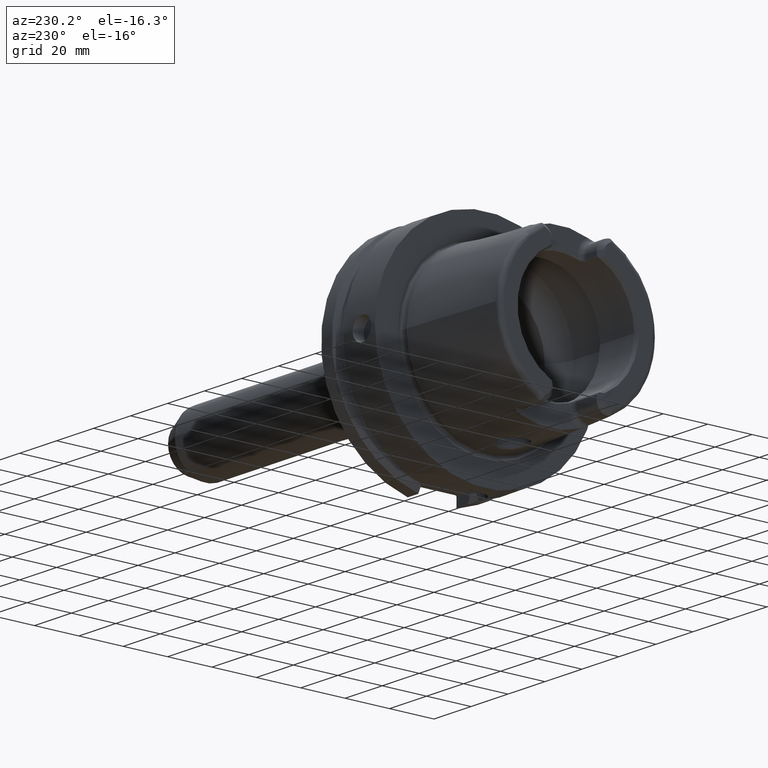
[diagram: clean part render]
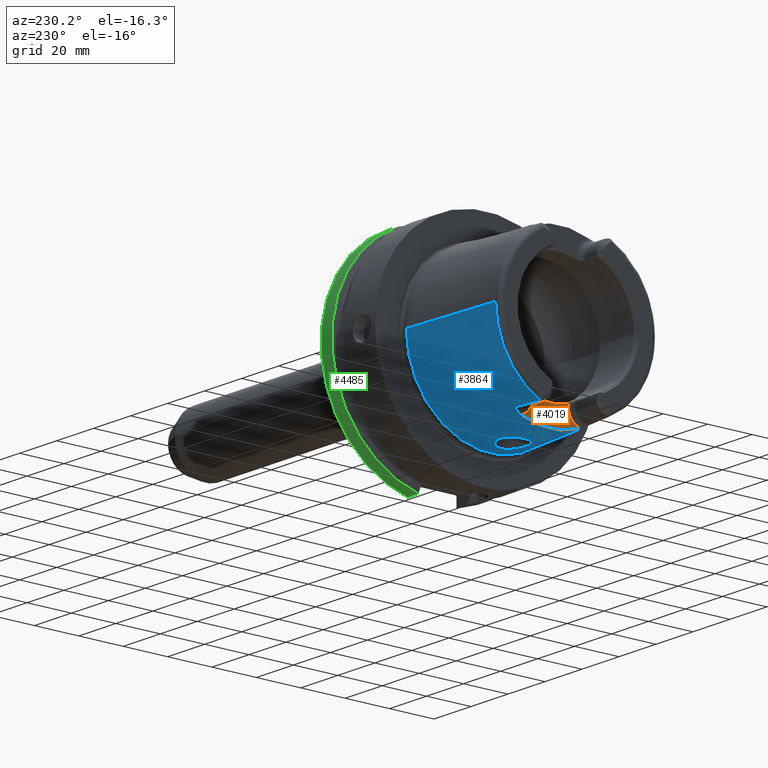
[diagram: same view with three faces highlighted in distinct colors, each labeled with its STEP entity id]
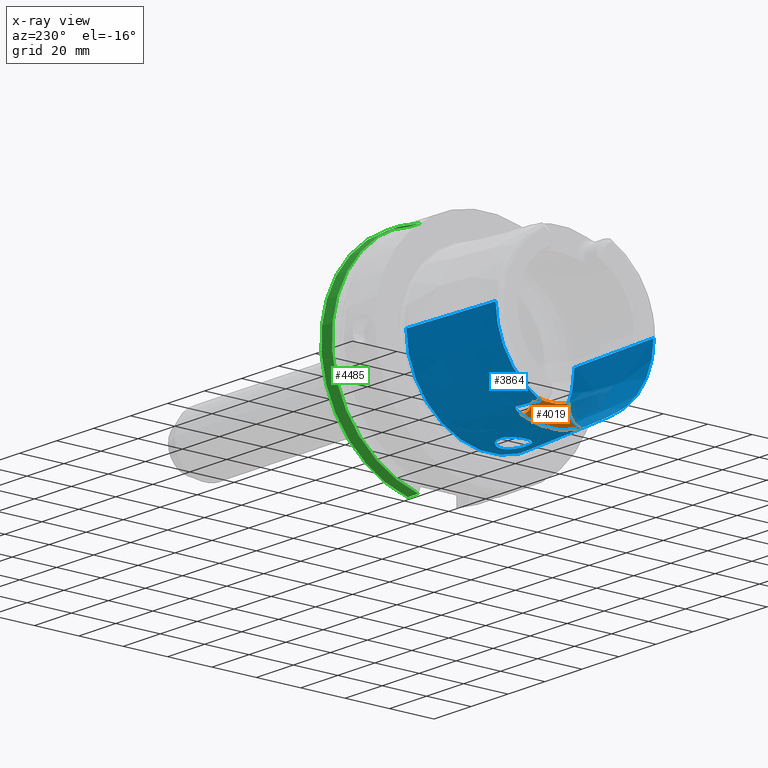
[diagram: x-ray of the same camera — body ghosted, the three highlighted faces saturated]
A machine part, auxiliary view with three faces highlighted in distinct colors.
The next image is the same camera in x-ray (body ghosted, the three faces saturated) — at least one of them is partly hidden behind the body in this view.
Their STEP definitions:

[orange] entity #4019 — the highlighted planar face has unit normal (-1, 0, 0).
#549=CARTESIAN_POINT('',(-3.5E1,0.E0,0.E0));
#550=DIRECTION('',(1.E0,0.E0,0.E0));
#551=DIRECTION('',(0.E0,-3.659355944317E-1,-9.306401779033E-1));
#552=AXIS2_PLACEMENT_3D('',#549,#550,#551);
#659=CARTESIAN_POINT('',(-3.5E1,1.326662904053E1,-3.373942900971E1));
#700=CARTESIAN_POINT('',(-3.5E1,-8.009999999994E0,-2.576044140549E1));
#701=CARTESIAN_POINT('',(-3.5E1,-7.269616392494E0,-2.599521452766E1));
#702=CARTESIAN_POINT('',(-3.5E1,-5.774680607735E0,-2.639793295020E1));
#703=CARTESIAN_POINT('',(-3.5E1,-3.481759859027E0,-2.680464578135E1));
#704=CARTESIAN_POINT('',(-3.5E1,-1.163574268408E0,-2.700848033442E1));
#705=CARTESIAN_POINT('',(-3.5E1,1.163574229636E0,-2.700848033529E1));
#706=CARTESIAN_POINT('',(-3.5E1,3.481759771636E0,-2.680464579107E1));
#707=CARTESIAN_POINT('',(-3.5E1,5.774680487919E0,-2.639793297771E1));
#708=CARTESIAN_POINT('',(-3.5E1,7.269616343063E0,-2.599521454333E1));
#709=CARTESIAN_POINT('',(-3.5E1,8.009999999993E0,-2.576044140549E1));
#711=DIRECTION('',(0.E0,-5.262912738182E-12,-1.E0));
#712=VECTOR('',#711,1.199558594507E0);
#713=CARTESIAN_POINT('',(-3.5E1,-8.009999999994E0,-2.576044140549E1));
#714=LINE('',#713,#712);
#715=CARTESIAN_POINT('',(-3.5E1,-1.501E1,-2.696E1));
#716=DIRECTION('',(-1.E0,0.E0,0.E0));
#717=DIRECTION('',(0.E0,1.E0,0.E0));
#718=AXIS2_PLACEMENT_3D('',#715,#716,#717);
#720=CARTESIAN_POINT('',(-3.5E1,1.501E1,-2.696E1));
#721=DIRECTION('',(-1.E0,0.E0,0.E0));
#722=DIRECTION('',(0.E0,-2.490529942106E-1,-9.684898585296E-1));
#723=AXIS2_PLACEMENT_3D('',#720,#721,#722);
#725=DIRECTION('',(0.E0,-6.865183864462E-12,1.E0));
#726=VECTOR('',#725,1.199558594503E0);
#727=CARTESIAN_POINT('',(-3.5E1,8.010000000001E0,-2.695999999999E1));
#728=LINE('',#727,#726);
#799=CARTESIAN_POINT('',(-3.5E1,-1.326662904053E1,-3.373942900971E1));
#3019=VERTEX_POINT('',#799);
#3020=VERTEX_POINT('',#659);
#3024=CARTESIAN_POINT('',(-3.5E1,-8.01E0,-2.696E1));
#3026=VERTEX_POINT('',#3024);
#3028=CARTESIAN_POINT('',(-3.5E1,8.01E0,-2.696E1));
#3030=VERTEX_POINT('',#3028);
#3036=VERTEX_POINT('',#700);
#3037=VERTEX_POINT('',#709);
#4004=CARTESIAN_POINT('',(-3.5E1,0.E0,0.E0));
#4005=DIRECTION('',(-1.E0,0.E0,0.E0));
#4006=DIRECTION('',(0.E0,0.E0,1.E0));
#4007=AXIS2_PLACEMENT_3D('',#4004,#4005,#4006);
#4008=PLANE('',#4007);
#4009=ORIENTED_EDGE('',*,*,#3995,.F.);
#4011=ORIENTED_EDGE('',*,*,#4010,.T.);
#4013=ORIENTED_EDGE('',*,*,#4012,.T.);
#4014=ORIENTED_EDGE('',*,*,#3843,.T.);
#4015=ORIENTED_EDGE('',*,*,#3901,.T.);
#4016=ORIENTED_EDGE('',*,*,#3913,.T.);
#4017=EDGE_LOOP('',(#4009,#4011,#4013,#4014,#4015,#4016));
#4018=FACE_OUTER_BOUND('',#4017,.F.);
#4019=ADVANCED_FACE('',(#4018),#4008,.T.);
#553=CIRCLE('',#552,3.6254E1);
#710=B_SPLINE_CURVE_WITH_KNOTS('',3,(#700,#701,#702,#703,#704,#705,#706,#707,
#708,#709),.UNSPECIFIED.,.F.,.F.,(4,1,1,1,1,1,1,4),(0.E0,1.428571428571E-1,
2.857142857143E-1,4.285714285714E-1,5.714285714286E-1,7.142857142857E-1,
8.571428571429E-1,1.E0),.UNSPECIFIED.);
#719=CIRCLE('',#718,7.E0);
#724=CIRCLE('',#723,7.E0);
#3843=EDGE_CURVE('',#3019,#3020,#553,.T.);
#3901=EDGE_CURVE('',#3020,#3030,#724,.T.);
#3913=EDGE_CURVE('',#3030,#3037,#728,.T.);
#3995=EDGE_CURVE('',#3036,#3037,#710,.T.);
#4010=EDGE_CURVE('',#3036,#3026,#714,.T.);
#4012=EDGE_CURVE('',#3026,#3019,#719,.T.);

[blue] entity #3864 — the highlighted conical surface has half-angle 2.868 deg.
#307=CARTESIAN_POINT('',(-4.810007448473E1,0.E0,0.E0));
#308=DIRECTION('',(-1.E0,0.E0,0.E0));
#309=DIRECTION('',(0.E0,1.E0,0.E0));
#310=AXIS2_PLACEMENT_3D('',#307,#308,#309);
#392=CARTESIAN_POINT('',(-4.810007448473E1,0.E0,0.E0));
#393=DIRECTION('',(-1.E0,0.E0,0.E0));
#394=DIRECTION('',(0.E0,-4.403806547453E-1,-8.978111599474E-1));
#395=AXIS2_PLACEMENT_3D('',#392,#393,#394);
#542=CARTESIAN_POINT('',(-4.810007448473E1,1.567653238626E1,-3.196E1));
#543=CARTESIAN_POINT('',(-4.691253354608E1,1.581163323682E1,-3.196E1));
#544=CARTESIAN_POINT('',(-4.450693295241E1,1.608249060017E1,-3.196E1));
#545=CARTESIAN_POINT('',(-4.080822205394E1,1.649061651786E1,-3.196E1));
#546=CARTESIAN_POINT('',(-3.827971844003E1,1.676420418060E1,-3.196E1));
#547=CARTESIAN_POINT('',(-3.7E1,1.690135066910E1,-3.196E1));
#549=CARTESIAN_POINT('',(-3.5E1,0.E0,0.E0));
#550=DIRECTION('',(1.E0,0.E0,0.E0));
#551=DIRECTION('',(0.E0,-3.659355944317E-1,-9.306401779033E-1));
#552=AXIS2_PLACEMENT_3D('',#549,#550,#551);
#554=CARTESIAN_POINT('',(-3.7E1,-1.690135066910E1,-3.196E1));
#555=CARTESIAN_POINT('',(-3.827957528302E1,-1.676421952263E1,-3.196E1));
#556=CARTESIAN_POINT('',(-4.080788819039E1,-1.649065289085E1,-3.196E1));
#557=CARTESIAN_POINT('',(-4.450660828452E1,-1.608252688744E1,-3.196E1));
#558=CARTESIAN_POINT('',(-4.691239447940E1,-1.581164905777E1,-3.196E1));
#559=CARTESIAN_POINT('',(-4.810007448473E1,-1.567653238626E1,-3.196E1));
#561=DIRECTION('',(-9.987473526255E-1,5.003724236654E-2,0.E0));
#562=VECTOR('',#561,4.565726694029E1);
#563=CARTESIAN_POINT('',(-2.5E0,-3.788225E1,0.E0));
#564=LINE('',#563,#562);
#565=CARTESIAN_POINT('',(-2.5E0,0.E0,0.E0));
#566=DIRECTION('',(1.E0,0.E0,0.E0));
#567=DIRECTION('',(0.E0,-1.E0,0.E0));
#568=AXIS2_PLACEMENT_3D('',#565,#566,#567);
#570=DIRECTION('',(-9.987473526255E-1,-5.003724236654E-2,0.E0));
#571=VECTOR('',#570,4.565726694029E1);
#572=CARTESIAN_POINT('',(-2.5E0,3.788225E1,0.E0));
#573=LINE('',#572,#571);
#574=CARTESIAN_POINT('',(-8.500618228215E0,-4.475741567310E-11,
-3.758161092103E1));
#575=CARTESIAN_POINT('',(-8.500550626629E0,2.307123186996E-1,
-3.758164609326E1));
#576=CARTESIAN_POINT('',(-8.527361627144E0,7.336655055656E-1,
-3.757562989718E1));
#577=CARTESIAN_POINT('',(-8.658487901890E0,1.501607868725E0,-3.754653658895E1));
#578=CARTESIAN_POINT('',(-8.897257248323E0,2.287068896E0,-3.749470537780E1));
#579=CARTESIAN_POINT('',(-9.233930830616E0,3.038376631295E0,-3.742413833235E1));
#580=CARTESIAN_POINT('',(-9.665180423226E0,3.744542284435E0,-3.733806106411E1));
#581=CARTESIAN_POINT('',(-1.018494007596E1,4.392525906197E0,-3.724079839048E1));
#582=CARTESIAN_POINT('',(-1.078433252086E1,4.969742317677E0,-3.713748237766E1));
#583=CARTESIAN_POINT('',(-1.145295368828E1,5.465719413789E0,-3.703348699097E1));
#584=CARTESIAN_POINT('',(-1.217872434304E1,5.871741506149E0,-3.693411809702E1));
#585=CARTESIAN_POINT('',(-1.294907725396E1,6.181458789403E0,-3.684412609384E1));
#586=CARTESIAN_POINT('',(-1.375077304364E1,6.390383355882E0,-3.676749362246E1));
#587=CARTESIAN_POINT('',(-1.457124723519E1,6.496150992971E0,-3.670710043979E1));
#588=CARTESIAN_POINT('',(-1.539963323060E1,6.497327684605E0,-3.666473599908E1));
#589=CARTESIAN_POINT('',(-1.621811808436E1,6.394337052140E0,-3.664130538745E1));
#590=CARTESIAN_POINT('',(-1.701498565109E1,6.189982543680E0,-3.663607891146E1));
#591=CARTESIAN_POINT('',(-1.778004900083E1,5.887116868581E0,-3.664741303044E1));
#592=CARTESIAN_POINT('',(-1.850137732128E1,5.490146143225E0,-3.667277568766E1));
#593=CARTESIAN_POINT('',(-1.916799834207E1,5.004550368212E0,-3.670886700839E1));
#594=CARTESIAN_POINT('',(-1.976920462201E1,4.437176205297E0,-3.675182754134E1));
#595=CARTESIAN_POINT('',(-2.029477253260E1,3.796411168194E0,-3.679746060413E1));
#596=CARTESIAN_POINT('',(-2.073457092496E1,3.093790391877E0,-3.684142692236E1));
#597=CARTESIAN_POINT('',(-2.108101531841E1,2.341868855664E0,-3.687975533364E1));
#598=CARTESIAN_POINT('',(-2.132907064090E1,1.552529546171E0,-3.690920014808E1));
#599=CARTESIAN_POINT('',(-2.146979802624E1,7.662360037897E-1,
-3.692663777819E1));
#600=CARTESIAN_POINT('',(-2.149947827869E1,2.456572466609E-1,
-3.693041402385E1));
#601=CARTESIAN_POINT('',(-2.149938206728E1,4.252313622681E-11,
-3.693037255683E1));
#603=CARTESIAN_POINT('',(-2.149938206728E1,4.252313622681E-11,
-3.693037255683E1));
#604=CARTESIAN_POINT('',(-2.149945538697E1,-2.340479521171E-1,
-3.693040395485E1));
#605=CARTESIAN_POINT('',(-2.147182734210E1,-7.430736824871E-1,
-3.692689923808E1));
#606=CARTESIAN_POINT('',(-2.133729628437E1,-1.518670363132E0,
-3.691020402111E1));
#607=CARTESIAN_POINT('',(-2.109342961129E1,-2.309431654899E0,
-3.688118929283E1));
#608=CARTESIAN_POINT('',(-2.075099845802E1,-3.063198291705E0,
-3.684317083610E1));
#609=CARTESIAN_POINT('',(-2.031499413642E1,-3.768106404610E0,
-3.679936697460E1));
#610=CARTESIAN_POINT('',(-1.979289029767E1,-4.411650229581E0,
-3.675372219731E1));
#611=CARTESIAN_POINT('',(-1.919463266022E1,-4.982323872691E0,
-3.671056084722E1));
#612=CARTESIAN_POINT('',(-1.853041114464E1,-5.471591578572E0,
-3.667409350441E1));
#613=CARTESIAN_POINT('',(-1.781100487862E1,-5.872448697570E0,
-3.664820853921E1));
#614=CARTESIAN_POINT('',(-1.704753604412E1,-6.179316936003E0,
-3.663623504527E1));
#615=CARTESIAN_POINT('',(-1.625202603452E1,-6.387759294270E0,
-3.664073415043E1));
#616=CARTESIAN_POINT('',(-1.543496245560E1,-6.495024783349E0,
-3.666334839609E1));
#617=CARTESIAN_POINT('',(-1.460654750338E1,-6.498344270788E0,
-3.670491373185E1));
#618=CARTESIAN_POINT('',(-1.378596486485E1,-6.397082641248E0,
-3.676453213359E1));
#619=CARTESIAN_POINT('',(-1.298349373108E1,-6.192696568201E0,
-3.684047961027E1));
#620=CARTESIAN_POINT('',(-1.221144146647E1,-5.887281631963E0,
-3.692997057387E1));
#621=CARTESIAN_POINT('',(-1.148337668307E1,-5.485279169694E0,
-3.702903815359E1));
#622=CARTESIAN_POINT('',(-1.081197580096E1,-4.993009521795E0,
-3.713294698881E1));
#623=CARTESIAN_POINT('',(-1.020932849949E1,-4.419085304323E0,
-3.723640914420E1));
#624=CARTESIAN_POINT('',(-9.685901962872E0,-3.773893108114E0,
-3.733404753344E1));
#625=CARTESIAN_POINT('',(-9.250671307496E0,-3.069967665821E0,
-3.742070642908E1));
#626=CARTESIAN_POINT('',(-8.909811119218E0,-2.320344961222E0,
-3.749202098184E1));
#627=CARTESIAN_POINT('',(-8.666742386503E0,-1.536111417479E0,
-3.754472100539E1));
#628=CARTESIAN_POINT('',(-8.529385927200E0,-7.571760095601E-1,
-3.757517178087E1));
#629=CARTESIAN_POINT('',(-8.500529445925E0,-2.424682905367E-1,
-3.758165757513E1));
#630=CARTESIAN_POINT('',(-8.500618228215E0,-4.475741567310E-11,
-3.758161092103E1));
#644=CARTESIAN_POINT('',(-3.525270277560E1,1.501E1,-3.298688520224E1));
#645=CARTESIAN_POINT('',(-3.528534211849E1,1.513484846724E1,-3.292827892747E1));
#646=CARTESIAN_POINT('',(-3.535659114497E1,1.537361797185E1,-3.281400095423E1));
#647=CARTESIAN_POINT('',(-3.548419296966E1,1.570424630972E1,-3.264982183345E1));
#648=CARTESIAN_POINT('',(-3.562487069608E1,1.598931575733E1,-3.250314611781E1));
#649=CARTESIAN_POINT('',(-3.577616803803E1,1.623191524099E1,-3.237407229234E1));
#650=CARTESIAN_POINT('',(-3.593586343865E1,1.643375355599E1,-3.226300002168E1));
#651=CARTESIAN_POINT('',(-3.610247622728E1,1.659835163566E1,-3.216916661381E1));
#652=CARTESIAN_POINT('',(-3.628387335068E1,1.673284687743E1,-3.208910564772E1));
#653=CARTESIAN_POINT('',(-3.646929278561E1,1.682849462631E1,-3.202850145999E1));
#654=CARTESIAN_POINT('',(-3.665268151350E1,1.688632035229E1,-3.198763365132E1));
#655=CARTESIAN_POINT('',(-3.682605028784E1,1.691041315903E1,-3.196506559814E1));
#656=CARTESIAN_POINT('',(-3.694247506704E1,1.690751557406E1,-3.196E1));
#657=CARTESIAN_POINT('',(-3.7E1,1.690135066910E1,-3.196E1));
#659=CARTESIAN_POINT('',(-3.5E1,1.326662904053E1,-3.373942900971E1));
#660=CARTESIAN_POINT('',(-3.5E1,1.343868538316E1,-3.367177499958E1));
#661=CARTESIAN_POINT('',(-3.501772820886E1,1.379762114623E1,-3.352663792870E1));
#662=CARTESIAN_POINT('',(-3.510106181354E1,1.437663105579E1,-3.327825241176E1));
#663=CARTESIAN_POINT('',(-3.519623214612E1,1.479399468517E1,-3.308828225672E1));
#664=CARTESIAN_POINT('',(-3.525270277560E1,1.501E1,-3.298688520224E1));
#794=CARTESIAN_POINT('',(-3.525270277560E1,-1.501E1,-3.298688520224E1));
#795=CARTESIAN_POINT('',(-3.519623503110E1,-1.479400572048E1,
-3.308827707653E1));
#796=CARTESIAN_POINT('',(-3.510106651291E1,-1.437665722375E1,
-3.327824091962E1));
#797=CARTESIAN_POINT('',(-3.501772741615E1,-1.379761960865E1,
-3.352663874321E1));
#798=CARTESIAN_POINT('',(-3.5E1,-1.343868456055E1,-3.367177532304E1));
#799=CARTESIAN_POINT('',(-3.5E1,-1.326662904053E1,-3.373942900971E1));
#806=CARTESIAN_POINT('',(-3.7E1,-1.690135066910E1,-3.196E1));
#807=CARTESIAN_POINT('',(-3.694105098899E1,-1.690766819146E1,-3.196E1));
#808=CARTESIAN_POINT('',(-3.682165804795E1,-1.691069512865E1,
-3.196516571864E1));
#809=CARTESIAN_POINT('',(-3.663738639512E1,-1.688312526699E1,
-3.199018906640E1));
#810=CARTESIAN_POINT('',(-3.645510025775E1,-1.682223827784E1,
-3.203259314290E1));
#811=CARTESIAN_POINT('',(-3.627410510575E1,-1.672636778758E1,
-3.209303313888E1));
#812=CARTESIAN_POINT('',(-3.609632853779E1,-1.659293907050E1,
-3.217230584166E1));
#813=CARTESIAN_POINT('',(-3.592925092948E1,-1.642640915267E1,
-3.226711747878E1));
#814=CARTESIAN_POINT('',(-3.576988123363E1,-1.622286102910E1,
-3.237896532757E1));
#815=CARTESIAN_POINT('',(-3.561995095366E1,-1.598020953691E1,
-3.250789603110E1));
#816=CARTESIAN_POINT('',(-3.548248183207E1,-1.569950921203E1,
-3.265215582464E1));
#817=CARTESIAN_POINT('',(-3.535882357255E1,-1.537978468576E1,
-3.281096523600E1));
#818=CARTESIAN_POINT('',(-3.528614819240E1,-1.513793177358E1,
-3.292683156410E1));
#819=CARTESIAN_POINT('',(-3.525270277560E1,-1.501E1,-3.298688520224E1));
#2887=CARTESIAN_POINT('',(-2.5E0,3.788225E1,0.E0));
#2888=CARTESIAN_POINT('',(-2.5E0,-3.788225E1,0.E0));
#2889=VERTEX_POINT('',#2887);
#2890=VERTEX_POINT('',#2888);
#2891=CARTESIAN_POINT('',(-4.810007448473E1,3.559768626831E1,0.E0));
#2892=VERTEX_POINT('',#2891);
#2893=CARTESIAN_POINT('',(-4.810007448473E1,-3.559768626831E1,0.E0));
#2894=VERTEX_POINT('',#2893);
#3011=CARTESIAN_POINT('',(-4.810007448473E1,1.567653238626E1,-3.196E1));
#3012=VERTEX_POINT('',#3011);
#3013=CARTESIAN_POINT('',(-4.810007448473E1,-1.567653238626E1,-3.196E1));
#3014=VERTEX_POINT('',#3013);
#3016=CARTESIAN_POINT('',(-3.525270277560E1,-1.501E1,-3.298688520224E1));
#3018=VERTEX_POINT('',#3016);
#3019=VERTEX_POINT('',#799);
#3020=VERTEX_POINT('',#659);
#3021=VERTEX_POINT('',#664);
#3032=CARTESIAN_POINT('',(-3.7E1,-1.690135066910E1,-3.196E1));
#3033=VERTEX_POINT('',#3032);
#3034=CARTESIAN_POINT('',(-3.7E1,1.690135066910E1,-3.196E1));
#3035=VERTEX_POINT('',#3034);
#3100=VERTEX_POINT('',#574);
#3101=VERTEX_POINT('',#601);
#3832=CARTESIAN_POINT('',(-2.530003724237E1,0.E0,0.E0));
#3833=DIRECTION('',(1.E0,0.E0,0.E0));
#3834=DIRECTION('',(0.E0,-1.E0,0.E0));
#3835=AXIS2_PLACEMENT_3D('',#3832,#3833,#3834);
#3836=CONICAL_SURFACE('',#3835,3.673996813416E1,2.868120487315E0);
#3838=ORIENTED_EDGE('',*,*,#3837,.T.);
#3840=ORIENTED_EDGE('',*,*,#3839,.F.);
#3842=ORIENTED_EDGE('',*,*,#3841,.F.);
#3844=ORIENTED_EDGE('',*,*,#3843,.F.);
#3846=ORIENTED_EDGE('',*,*,#3845,.F.);
#3848=ORIENTED_EDGE('',*,*,#3847,.F.);
#3849=ORIENTED_EDGE('',*,*,#3823,.T.);
#3850=ORIENTED_EDGE('',*,*,#3662,.T.);
#3851=ORIENTED_EDGE('',*,*,#3364,.F.);
#3853=ORIENTED_EDGE('',*,*,#3852,.T.);
#3854=ORIENTED_EDGE('',*,*,#3360,.T.);
#3855=ORIENTED_EDGE('',*,*,#3641,.T.);
#3856=EDGE_LOOP('',(#3838,#3840,#3842,#3844,#3846,#3848,#3849,#3850,#3851,#3853,
#3854,#3855));
#3857=FACE_OUTER_BOUND('',#3856,.F.);
#3859=ORIENTED_EDGE('',*,*,#3858,.F.);
#3861=ORIENTED_EDGE('',*,*,#3860,.F.);
#3862=EDGE_LOOP('',(#3859,#3861));
#3863=FACE_BOUND('',#3862,.F.);
#3864=ADVANCED_FACE('',(#3857,#3863),#3836,.T.);
#311=CIRCLE('',#310,3.559768626831E1);
#396=CIRCLE('',#395,3.559768626831E1);
#548=B_SPLINE_CURVE_WITH_KNOTS('',3,(#542,#543,#544,#545,#546,#547),
.UNSPECIFIED.,.F.,.F.,(4,1,1,4),(0.E0,3.333333333333E-1,6.666666666667E-1,1.E0),
.UNSPECIFIED.);
#553=CIRCLE('',#552,3.6254E1);
#560=B_SPLINE_CURVE_WITH_KNOTS('',3,(#554,#555,#556,#557,#558,#559),
.UNSPECIFIED.,.F.,.F.,(4,1,1,4),(0.E0,3.333333333333E-1,6.666666666667E-1,1.E0),
.UNSPECIFIED.);
#569=CIRCLE('',#568,3.788225E1);
#602=B_SPLINE_CURVE_WITH_KNOTS('',3,(#574,#575,#576,#577,#578,#579,#580,#581,
#582,#583,#584,#585,#586,#587,#588,#589,#590,#591,#592,#593,#594,#595,#596,#597,
#598,#599,#600,#601),.UNSPECIFIED.,.F.,.F.,(4,1,1,1,1,1,1,1,1,1,1,1,1,1,1,1,1,1,
1,1,1,1,1,1,1,4),(0.E0,3.441266963499E-2,7.481788366542E-2,1.152230976959E-1,
1.556283117263E-1,1.960335257567E-1,2.364387397872E-1,2.768439538176E-1,
3.172491678480E-1,3.576543818785E-1,3.980595959089E-1,4.384648099393E-1,
4.788700239698E-1,5.192752380002E-1,5.596804520306E-1,6.000856660611E-1,
6.404908800915E-1,6.808960941219E-1,7.213013081524E-1,7.617065221828E-1,
8.021117362132E-1,8.425169502437E-1,8.829221642741E-1,9.233273783045E-1,
9.637325923350E-1,1.E0),.UNSPECIFIED.);
#631=B_SPLINE_CURVE_WITH_KNOTS('',3,(#603,#604,#605,#606,#607,#608,#609,#610,
#611,#612,#613,#614,#615,#616,#617,#618,#619,#620,#621,#622,#623,#624,#625,#626,
#627,#628,#629,#630),.UNSPECIFIED.,.F.,.F.,(4,1,1,1,1,1,1,1,1,1,1,1,1,1,1,1,1,1,
1,1,1,1,1,1,1,4),(0.E0,3.452929677679E-2,7.493307390290E-2,1.153368510290E-1,
1.557406281551E-1,1.961444052812E-1,2.365481824073E-1,2.769519595334E-1,
3.173557366596E-1,3.577595137857E-1,3.981632909118E-1,4.385670680379E-1,
4.789708451640E-1,5.193746222901E-1,5.597783994162E-1,6.001821765423E-1,
6.405859536684E-1,6.809897307945E-1,7.213935079206E-1,7.617972850467E-1,
8.022010621729E-1,8.426048392990E-1,8.830086164251E-1,9.234123935512E-1,
9.638161706773E-1,1.E0),.UNSPECIFIED.);
#658=B_SPLINE_CURVE_WITH_KNOTS('',3,(#644,#645,#646,#647,#648,#649,#650,#651,
#652,#653,#654,#655,#656,#657),.UNSPECIFIED.,.F.,.F.,(4,1,1,1,1,1,1,1,1,1,1,4),(
0.E0,9.090909090909E-2,1.818181818182E-1,2.727272727273E-1,3.636363636364E-1,
4.545454545455E-1,5.454545454545E-1,6.363636363636E-1,7.272727272727E-1,
8.181818181818E-1,9.090909090909E-1,1.E0),.UNSPECIFIED.);
#665=B_SPLINE_CURVE_WITH_KNOTS('',3,(#659,#660,#661,#662,#663,#664),
.UNSPECIFIED.,.F.,.F.,(4,1,1,4),(0.E0,3.333333333333E-1,6.666666666667E-1,1.E0),
.UNSPECIFIED.);
#800=B_SPLINE_CURVE_WITH_KNOTS('',3,(#794,#795,#796,#797,#798,#799),
.UNSPECIFIED.,.F.,.F.,(4,1,1,4),(0.E0,3.333333333333E-1,6.666666666667E-1,1.E0),
.UNSPECIFIED.);
#820=B_SPLINE_CURVE_WITH_KNOTS('',3,(#806,#807,#808,#809,#810,#811,#812,#813,
#814,#815,#816,#817,#818,#819),.UNSPECIFIED.,.F.,.F.,(4,1,1,1,1,1,1,1,1,1,1,4),(
0.E0,9.090909090909E-2,1.818181818182E-1,2.727272727273E-1,3.636363636364E-1,
4.545454545455E-1,5.454545454545E-1,6.363636363636E-1,7.272727272727E-1,
8.181818181818E-1,9.090909090909E-1,1.E0),.UNSPECIFIED.);
#3360=EDGE_CURVE('',#2889,#2892,#573,.T.);
#3364=EDGE_CURVE('',#2890,#2894,#564,.T.);
#3641=EDGE_CURVE('',#2892,#3012,#311,.T.);
#3662=EDGE_CURVE('',#3014,#2894,#396,.T.);
#3823=EDGE_CURVE('',#3033,#3014,#560,.T.);
#3837=EDGE_CURVE('',#3012,#3035,#548,.T.);
#3839=EDGE_CURVE('',#3021,#3035,#658,.T.);
#3841=EDGE_CURVE('',#3020,#3021,#665,.T.);
#3843=EDGE_CURVE('',#3019,#3020,#553,.T.);
#3845=EDGE_CURVE('',#3018,#3019,#800,.T.);
#3847=EDGE_CURVE('',#3033,#3018,#820,.T.);
#3852=EDGE_CURVE('',#2890,#2889,#569,.T.);
#3858=EDGE_CURVE('',#3100,#3101,#602,.T.);
#3860=EDGE_CURVE('',#3101,#3100,#631,.T.);

[green] entity #4485 — the highlighted cylindrical surface (partial cylindrical patch) has radius 50 mm, axis along (1, 0, 0).
#1110=DIRECTION('',(1.E0,0.E0,0.E0));
#1111=VECTOR('',#1110,5.752404735808E0);
#1112=CARTESIAN_POINT('',(2.324759526419E1,1.1E1,-4.877499359303E1));
#1113=LINE('',#1112,#1111);
#1114=CARTESIAN_POINT('',(2.9E1,0.E0,0.E0));
#1115=DIRECTION('',(1.E0,0.E0,0.E0));
#1116=DIRECTION('',(0.E0,2.2E-1,-9.754998718606E-1));
#1117=AXIS2_PLACEMENT_3D('',#1114,#1115,#1116);
#1119=DIRECTION('',(1.E0,0.E0,0.E0));
#1120=VECTOR('',#1119,5.752404735808E0);
#1121=CARTESIAN_POINT('',(2.324759526419E1,1.E1,4.898979485566E1));
#1122=LINE('',#1121,#1120);
#1653=CARTESIAN_POINT('',(2.324759526419E1,0.E0,0.E0));
#1654=DIRECTION('',(1.E0,0.E0,0.E0));
#1655=DIRECTION('',(0.E0,2.2E-1,-9.754998718606E-1));
#1656=AXIS2_PLACEMENT_3D('',#1653,#1654,#1655);
#1663=CARTESIAN_POINT('',(2.324759526419E1,1.E1,4.898979485566E1));
#3163=VERTEX_POINT('',#1663);
#3172=CARTESIAN_POINT('',(2.324759526419E1,1.1E1,-4.877499359303E1));
#3173=CARTESIAN_POINT('',(2.9E1,1.1E1,-4.877499359303E1));
#3174=VERTEX_POINT('',#3172);
#3175=VERTEX_POINT('',#3173);
#3218=CARTESIAN_POINT('',(2.9E1,1.E1,4.898979485566E1));
#3219=VERTEX_POINT('',#3218);
#4471=CARTESIAN_POINT('',(-5.395E1,0.E0,0.E0));
#4472=DIRECTION('',(1.E0,0.E0,0.E0));
#4473=DIRECTION('',(0.E0,-1.E0,0.E0));
#4474=AXIS2_PLACEMENT_3D('',#4471,#4472,#4473);
#4475=CYLINDRICAL_SURFACE('',#4474,5.E1);
#4477=ORIENTED_EDGE('',*,*,#4476,.T.);
#4478=ORIENTED_EDGE('',*,*,#4420,.T.);
#4480=ORIENTED_EDGE('',*,*,#4479,.F.);
#4482=ORIENTED_EDGE('',*,*,#4481,.F.);
#4483=EDGE_LOOP('',(#4477,#4478,#4480,#4482));
#4484=FACE_OUTER_BOUND('',#4483,.F.);
#4485=ADVANCED_FACE('',(#4484),#4475,.T.);
#1118=CIRCLE('',#1117,5.E1);
#1657=CIRCLE('',#1656,5.E1);
#4420=EDGE_CURVE('',#3175,#3219,#1118,.T.);
#4476=EDGE_CURVE('',#3174,#3175,#1113,.T.);
#4479=EDGE_CURVE('',#3163,#3219,#1122,.T.);
#4481=EDGE_CURVE('',#3174,#3163,#1657,.T.);